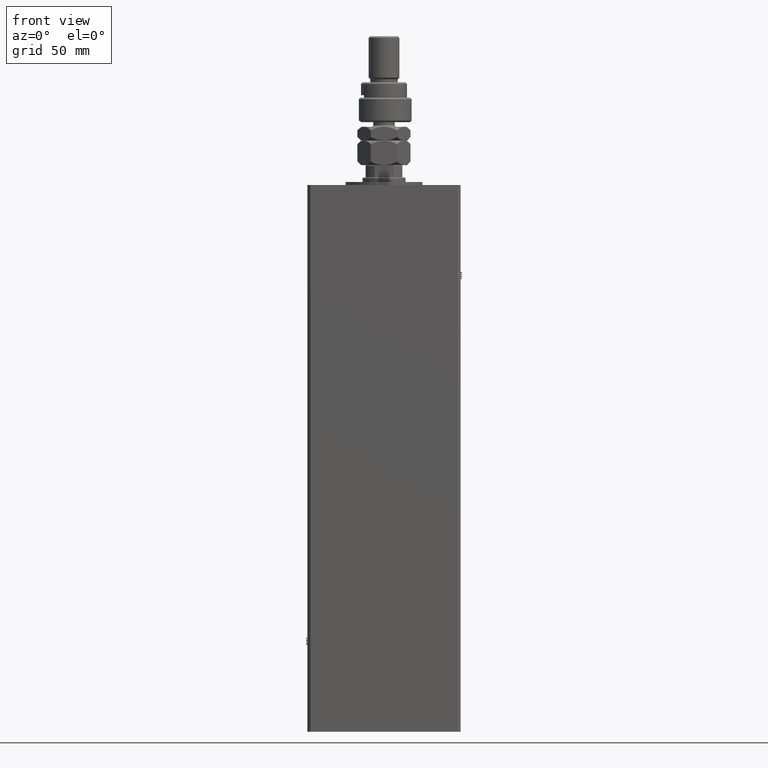
[diagram: clean part render]
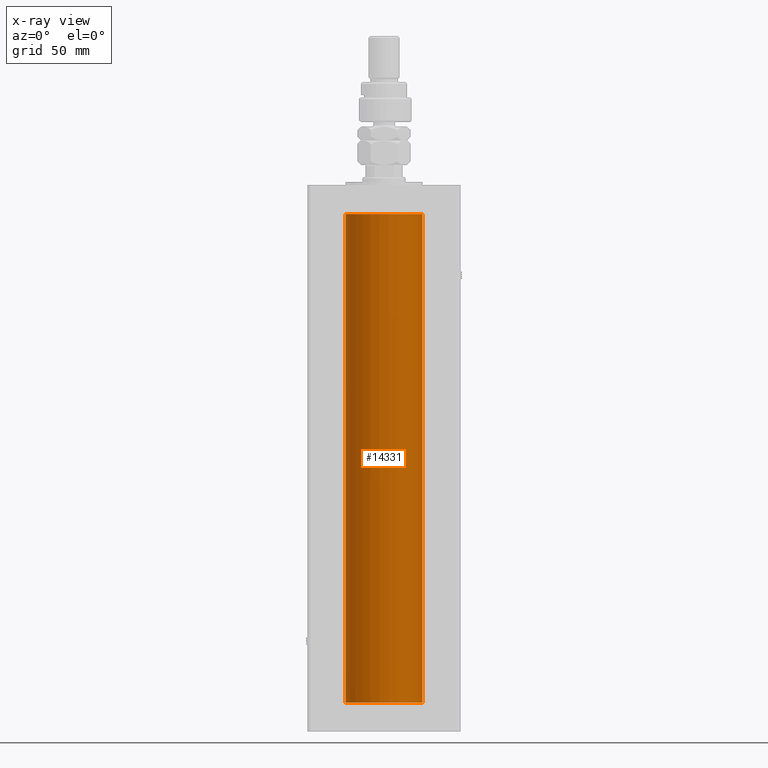
[diagram: x-ray — body ghosted, one internal face saturated and labeled with its STEP entity id]
A machine part, front view, then the same camera in x-ray: the body is ghosted and one INTERNAL B-rep face — a face not visible from any outside direction — is saturated and labeled: STEP entity #14331.
In plain terms, the highlighted cylindrical surface (partial cylindrical patch) has radius 25 mm, axis along (-0, -0, -1).
Its self-contained STEP definition (entity closure, byte-faithful):
#142 = AXIS2_PLACEMENT_3D ( 'NONE', #44874, #39917, #35536 ) ;
#399 = CARTESIAN_POINT ( 'NONE',  ( -25.00000000000000000, 0.000000000000000000, 318.5000000000000000 ) ) ;
#4052 = CARTESIAN_POINT ( 'NONE',  ( -25.00000000000000000, 0.000000000000000000, 318.5000000000000000 ) ) ;
#6144 = CARTESIAN_POINT ( 'NONE',  ( -25.00000000000000000, 0.000000000000000000, 0.000000000000000000 ) ) ;
#6289 = CYLINDRICAL_SURFACE ( 'NONE', #49780, 25.00000000000000000 ) ;
#6486 = DIRECTION ( 'NONE',  ( 1.000000000000000000, 0.000000000000000000, 0.000000000000000000 ) ) ;
#6778 = VERTEX_POINT ( 'NONE', #399 ) ;
#8602 = EDGE_CURVE ( 'NONE', #19649, #51399, #52512, .T. ) ;
#12951 = CARTESIAN_POINT ( 'NONE',  ( 25.00000000000000000, 3.061616997868383043E-15, 318.5000000000000000 ) ) ;
#14331 = ADVANCED_FACE ( 'NONE', ( #46451 ), #6289, .F. ) ;
#15680 = EDGE_CURVE ( 'NONE', #6778, #56667, #40450, .T. ) ;
#16318 = ORIENTED_EDGE ( 'NONE', *, *, #15680, .T. ) ;
#19649 = VERTEX_POINT ( 'NONE', #6144 ) ;
#19794 = DIRECTION ( 'NONE',  ( -1.000000000000000000, 0.000000000000000000, 0.000000000000000000 ) ) ;
#21768 = LINE ( 'NONE', #12951, #37234 ) ;
#24209 = CARTESIAN_POINT ( 'NONE',  ( 0.000000000000000000, 0.000000000000000000, 318.5000000000000000 ) ) ;
#24487 = DIRECTION ( 'NONE',  ( -0.000000000000000000, -0.000000000000000000, -1.000000000000000000 ) ) ;
#24696 = CARTESIAN_POINT ( 'NONE',  ( 0.000000000000000000, 0.000000000000000000, 0.000000000000000000 ) ) ;
#25386 = ORIENTED_EDGE ( 'NONE', *, *, #51474, .F. ) ;
#26175 = DIRECTION ( 'NONE',  ( -0.000000000000000000, -0.000000000000000000, -1.000000000000000000 ) ) ;
#29913 = EDGE_LOOP ( 'NONE', ( #16318, #41480, #56902, #25386 ) ) ;
#33746 = EDGE_CURVE ( 'NONE', #56667, #51399, #21768, .T. ) ;
#35536 = DIRECTION ( 'NONE',  ( 1.000000000000000000, 0.000000000000000000, 0.000000000000000000 ) ) ;
#37234 = VECTOR ( 'NONE', #26175, 1000.000000000000000 ) ;
#39409 = AXIS2_PLACEMENT_3D ( 'NONE', #24696, #41405, #6486 ) ;
#39917 = DIRECTION ( 'NONE',  ( -0.000000000000000000, 0.000000000000000000, 1.000000000000000000 ) ) ;
#40450 = CIRCLE ( 'NONE', #142, 25.00000000000000000 ) ;
#41405 = DIRECTION ( 'NONE',  ( -0.000000000000000000, 0.000000000000000000, 1.000000000000000000 ) ) ;
#41480 = ORIENTED_EDGE ( 'NONE', *, *, #33746, .T. ) ;
#42093 = CARTESIAN_POINT ( 'NONE',  ( 25.00000000000000000, 3.061616997868383043E-15, 318.5000000000000000 ) ) ;
#44220 = DIRECTION ( 'NONE',  ( -0.000000000000000000, -0.000000000000000000, -1.000000000000000000 ) ) ;
#44798 = LINE ( 'NONE', #4052, #51823 ) ;
#44874 = CARTESIAN_POINT ( 'NONE',  ( 0.000000000000000000, 0.000000000000000000, 318.5000000000000000 ) ) ;
#46451 = FACE_OUTER_BOUND ( 'NONE', #29913, .T. ) ;
#49780 = AXIS2_PLACEMENT_3D ( 'NONE', #24209, #24487, #19794 ) ;
#51399 = VERTEX_POINT ( 'NONE', #52153 ) ;
#51474 = EDGE_CURVE ( 'NONE', #6778, #19649, #44798, .T. ) ;
#51823 = VECTOR ( 'NONE', #44220, 1000.000000000000000 ) ;
#52153 = CARTESIAN_POINT ( 'NONE',  ( 25.00000000000000000, 3.061616997868383043E-15, 0.000000000000000000 ) ) ;
#52512 = CIRCLE ( 'NONE', #39409, 25.00000000000000000 ) ;
#56667 = VERTEX_POINT ( 'NONE', #42093 ) ;
#56902 = ORIENTED_EDGE ( 'NONE', *, *, #8602, .F. ) ;